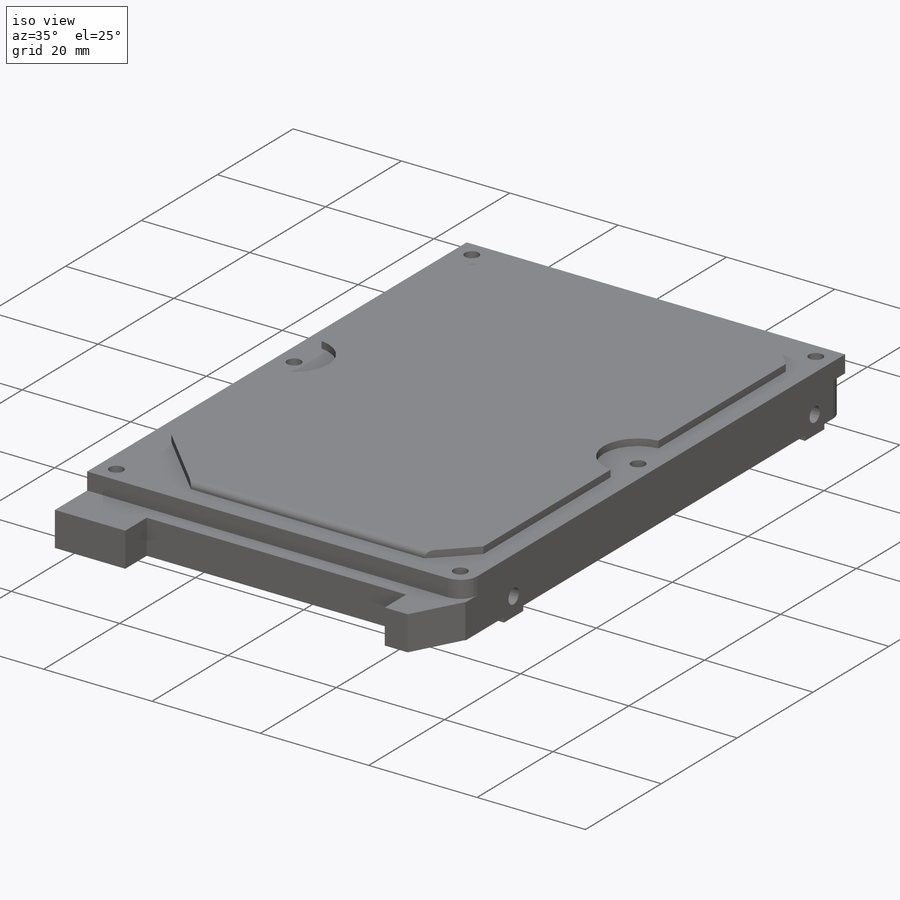
[diagram: iso view]
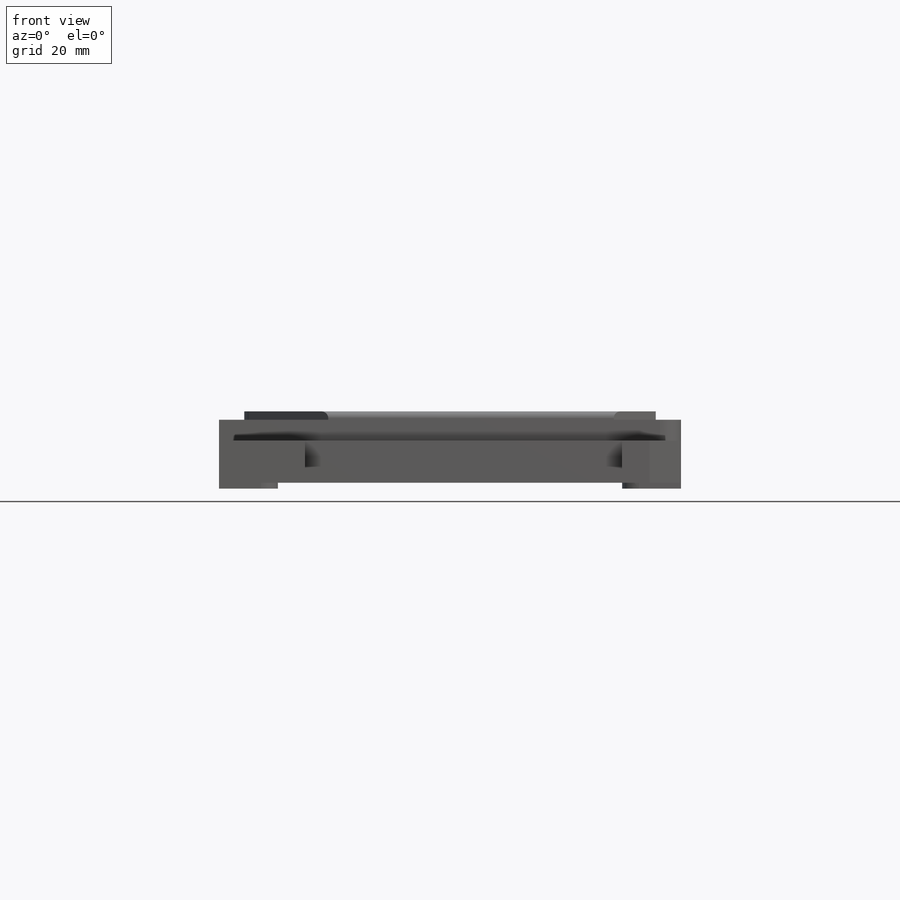
[diagram: front view]
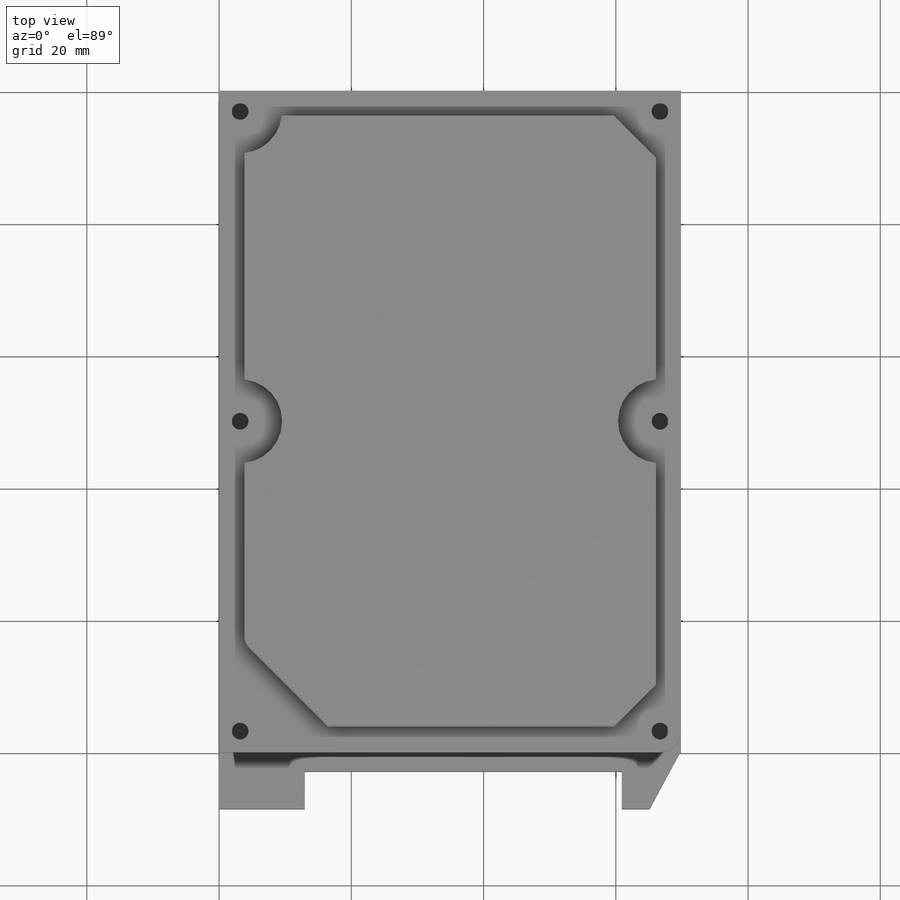
[diagram: top view]
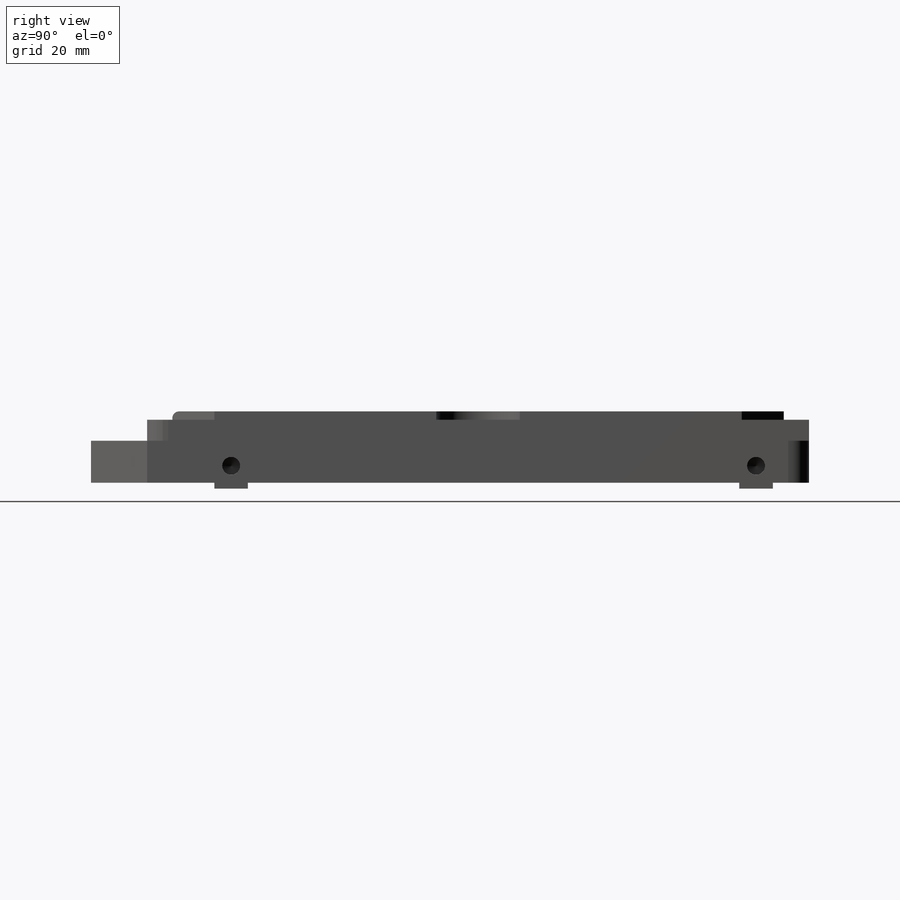
[diagram: right view]
SOLIDWORKS PART (.sldprt)
format: sldprt  version: not decoded by parser v0  size: 663,552 bytes
history: native  units: mm
features: sketch x15, plane x12, cut_revolve x8, extrude x6, fillet x3, material x1, cut_extrude x1 (+11 scaffold rows collapsed)
feature tree (57):
  scaffold x11  (default folders/planes/origin — collapsed)
  material  "Material <not specified>"
  plane  "Plane1"
  sketch  "S2D0001"
  extrude  "Boss-Extrude1"  Depth=3.175mm
  fillet  "Fillet1"  Radius=3.175mm
  plane  "Plane2"
  sketch  "S2D0002"  dims[D1=2.54mm]
  cut_extrude  "Cut-Extrude1"  Depth=3.4925mm
  sketch  "Sketch3"  dims[D1=6.35mm]
  extrude  "Boss-Extrude2"  Depth=1.27mm
  fillet  "Fillet2"  Radius=2.54mm
  fillet  "Fillet3"  Radius=1.016mm
  sketch  "Sketch4"
  extrude  "Boss-Extrude3"  Depth=6.35mm
  plane  "Plane3"
  sketch  "S2D0005"
  extrude  "Boss-Extrude4"  Depth=0mm
  plane  "Plane4"
  sketch  "S2D0007"
  cut_revolve  "Cut-Revolve1"  Angle=360deg
  plane  "Plane5"
  sketch  "Sketch7"
  cut_revolve  "Cut-Revolve2"  Angle=360deg
  plane  "Plane6"
  sketch  "S2D0008"
  cut_revolve  "Cut-Revolve3"  Angle=360deg
  plane  "Plane7"
  sketch  "S2D0009"
  cut_revolve  "Cut-Revolve4"  Angle=360deg
  sketch  "Sketch10"
  extrude  "Boss-Extrude5"  Depth=0.889mm
  plane  "Plane8"
  sketch  "S2D0019"
  cut_revolve  "Cut-Revolve5"  Angle=360deg
  plane  "Plane9"
  sketch  "Sketch12"
  cut_revolve  "Cut-Revolve6"  Angle=360deg
  plane  "Plane10"
  sketch  "S2D0021"
  cut_revolve  "Cut-Revolve7"  Angle=360deg
  plane  "Plane11"
  sketch  "Sketch14"
  cut_revolve  "Cut-Revolve8"  Angle=360deg
  sketch  "Sketch15"  dims[D1=5.6642mm]
  plane  "Plane12"
  extrude  "Boss-Extrude6"  Depth=0mm
decode coverage: 21 of 33 modeling features carry decoded parameters
note: suppression state not decoded; provenance and decode notes live in map.json
